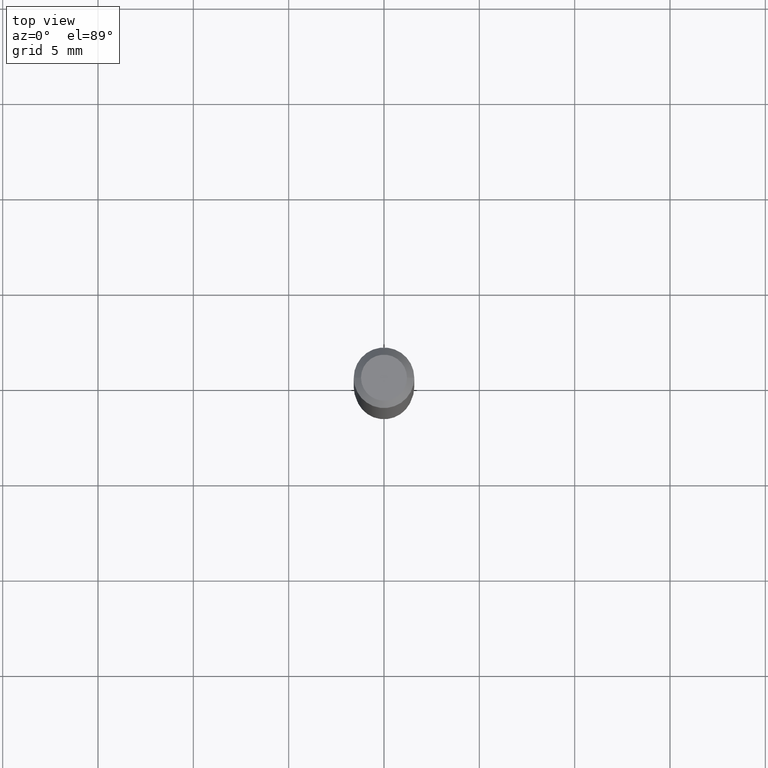
[diagram: clean part render]
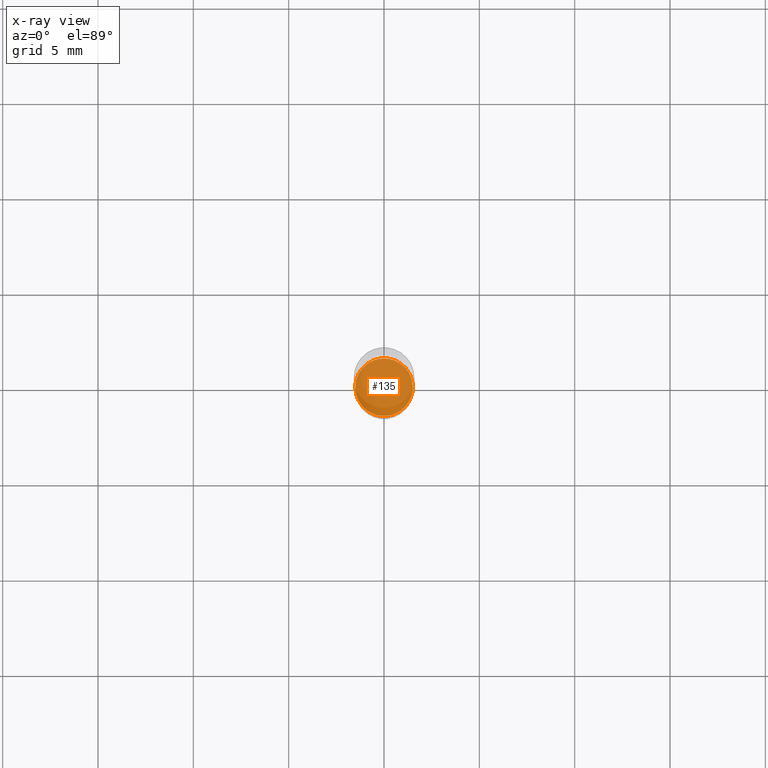
[diagram: x-ray — body ghosted, one internal face saturated and labeled with its STEP entity id]
A machine part, top view, then the same camera in x-ray: the body is ghosted and one INTERNAL B-rep face — a face not visible from any outside direction — is saturated and labeled: STEP entity #135.
In plain terms, the highlighted planar face has unit normal (-0, 0, 1).
Its self-contained STEP definition (entity closure, byte-faithful):
#35 = DIRECTION ( 'NONE',  ( 1.000000000000000000, -6.982962677686273810E-15, 0.000000000000000000 ) ) ;
#56 = FACE_OUTER_BOUND ( 'NONE', #104, .T. ) ;
#62 = CIRCLE ( 'NONE', #207, 0.05950000000000001815 ) ;
#104 = EDGE_LOOP ( 'NONE', ( #480, #413 ) ) ;
#105 = AXIS2_PLACEMENT_3D ( 'NONE', #119, #466, #35 ) ;
#116 = CIRCLE ( 'NONE', #105, 0.05950000000000001815 ) ;
#119 = CARTESIAN_POINT ( 'NONE',  ( 2.787834439051055989E-29, -3.980288726281186698E-15, -1.140000000000000124 ) ) ;
#135 = ADVANCED_FACE ( 'NONE', ( #56 ), #471, .F. ) ;
#180 = VERTEX_POINT ( 'NONE', #387 ) ;
#206 = DIRECTION ( 'NONE',  ( -2.445468806185136597E-29, 3.491481338843145583E-15, 1.000000000000000000 ) ) ;
#207 = AXIS2_PLACEMENT_3D ( 'NONE', #400, #206, #296 ) ;
#216 = AXIS2_PLACEMENT_3D ( 'NONE', #358, #234, #474 ) ;
#230 = VERTEX_POINT ( 'NONE', #512 ) ;
#231 = EDGE_CURVE ( 'NONE', #180, #230, #116, .T. ) ;
#234 = DIRECTION ( 'NONE',  ( -2.438088387897960049E-29, 3.491481338843145188E-15, 1.000000000000000000 ) ) ;
#296 = DIRECTION ( 'NONE',  ( 1.000000000000000000, -6.982962677686273810E-15, 0.000000000000000000 ) ) ;
#334 = EDGE_CURVE ( 'NONE', #230, #180, #62, .T. ) ;
#358 = CARTESIAN_POINT ( 'NONE',  ( 2.787834439051055989E-29, -3.980288726281186698E-15, -1.140000000000000124 ) ) ;
#387 = CARTESIAN_POINT ( 'NONE',  ( -0.05950000000000001815, -3.554866571329815905E-15, -1.140000000000000124 ) ) ;
#400 = CARTESIAN_POINT ( 'NONE',  ( 2.787834439051055989E-29, -3.980288726281186698E-15, -1.140000000000000124 ) ) ;
#413 = ORIENTED_EDGE ( 'NONE', *, *, #231, .F. ) ;
#466 = DIRECTION ( 'NONE',  ( -2.445468806185136597E-29, 3.491481338843145583E-15, 1.000000000000000000 ) ) ;
#471 = PLANE ( 'NONE',  #216 ) ;
#474 = DIRECTION ( 'NONE',  ( 1.000000000000000000, -6.982962677686265922E-15, 4.876176775795935793E-29 ) ) ;
#480 = ORIENTED_EDGE ( 'NONE', *, *, #334, .F. ) ;
#512 = CARTESIAN_POINT ( 'NONE',  ( 0.05950000000000001815, -4.395775005603519536E-15, -1.140000000000000124 ) ) ;